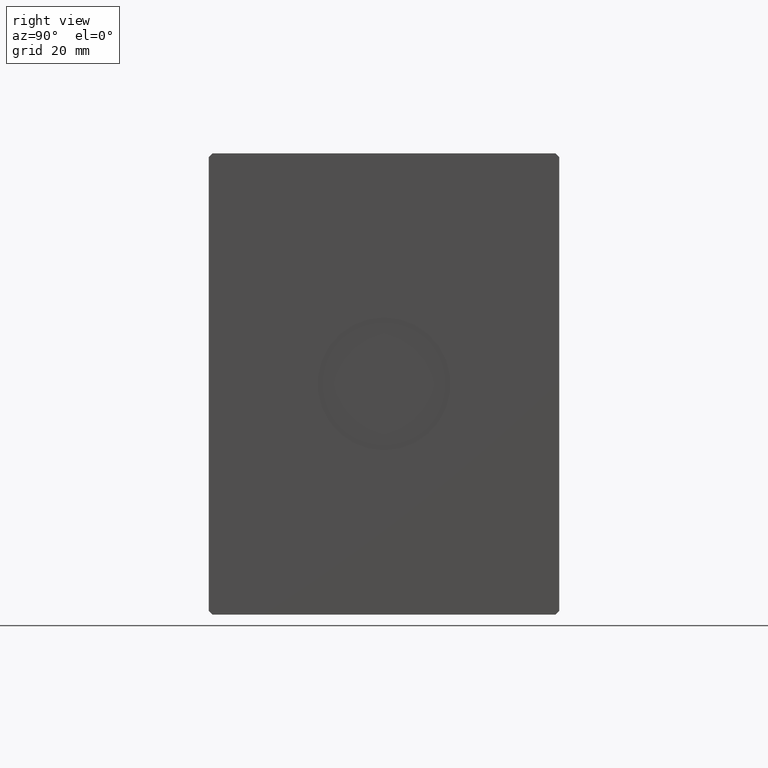
[diagram: clean part render]
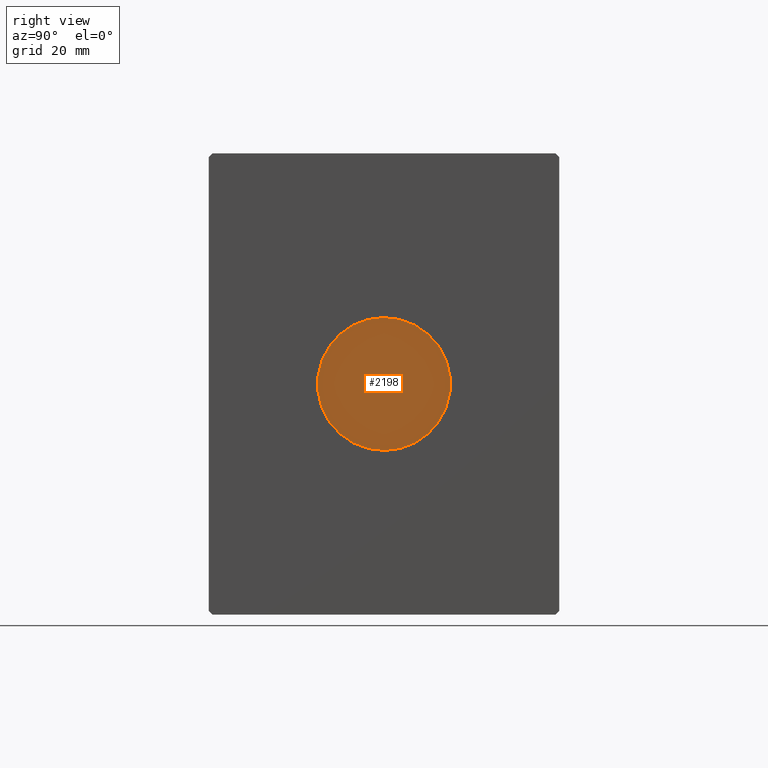
[diagram: same view with one face highlighted and labeled with its STEP entity id]
A machine part, right view. The second image highlights one B-rep face of the part: STEP entity #2198.
In plain terms, the highlighted planar face has unit normal (1, 0, 0).
Its self-contained STEP definition (entity closure, byte-faithful):
#2198 = ADVANCED_FACE ( 'NONE', ( #32087 ), #3000, .T. ) ;
#2238 = ORIENTED_EDGE ( 'NONE', *, *, #35337, .T. ) ;
#3000 = PLANE ( 'NONE',  #27462 ) ;
#4650 = DIRECTION ( 'NONE',  ( 1.000000000000000000, 0.000000000000000000, 0.000000000000000000 ) ) ;
#4776 = CIRCLE ( 'NONE', #39391, 18.00000000000000000 ) ;
#8781 = EDGE_CURVE ( 'NONE', #32244, #27340, #18583, .T. ) ;
#11878 = CARTESIAN_POINT ( 'NONE',  ( 120.7999999999999972, 0.000000000000000000, 0.000000000000000000 ) ) ;
#14765 = ORIENTED_EDGE ( 'NONE', *, *, #8781, .T. ) ;
#16196 = EDGE_LOOP ( 'NONE', ( #14765, #2238 ) ) ;
#17819 = DIRECTION ( 'NONE',  ( 0.000000000000000000, 0.000000000000000000, -1.000000000000000000 ) ) ;
#18583 = CIRCLE ( 'NONE', #38233, 18.00000000000000000 ) ;
#18882 = DIRECTION ( 'NONE',  ( 0.000000000000000000, 0.000000000000000000, -1.000000000000000000 ) ) ;
#19092 = CARTESIAN_POINT ( 'NONE',  ( 120.7999999999999972, 0.000000000000000000, 0.000000000000000000 ) ) ;
#20737 = CARTESIAN_POINT ( 'NONE',  ( 120.7999999999999972, 0.000000000000000000, -18.00000000000000000 ) ) ;
#22190 = CARTESIAN_POINT ( 'NONE',  ( 120.7999999999999972, 2.204364238465235428E-15, 18.00000000000000000 ) ) ;
#25286 = CARTESIAN_POINT ( 'NONE',  ( 120.7999999999999972, 0.000000000000000000, 0.000000000000000000 ) ) ;
#25500 = DIRECTION ( 'NONE',  ( 0.000000000000000000, 0.000000000000000000, -1.000000000000000000 ) ) ;
#27340 = VERTEX_POINT ( 'NONE', #22190 ) ;
#27462 = AXIS2_PLACEMENT_3D ( 'NONE', #25286, #28693, #25500 ) ;
#28693 = DIRECTION ( 'NONE',  ( 1.000000000000000000, 0.000000000000000000, 0.000000000000000000 ) ) ;
#32087 = FACE_OUTER_BOUND ( 'NONE', #16196, .T. ) ;
#32244 = VERTEX_POINT ( 'NONE', #20737 ) ;
#35001 = DIRECTION ( 'NONE',  ( 1.000000000000000000, 0.000000000000000000, 0.000000000000000000 ) ) ;
#35337 = EDGE_CURVE ( 'NONE', #27340, #32244, #4776, .T. ) ;
#38233 = AXIS2_PLACEMENT_3D ( 'NONE', #19092, #35001, #18882 ) ;
#39391 = AXIS2_PLACEMENT_3D ( 'NONE', #11878, #4650, #17819 ) ;